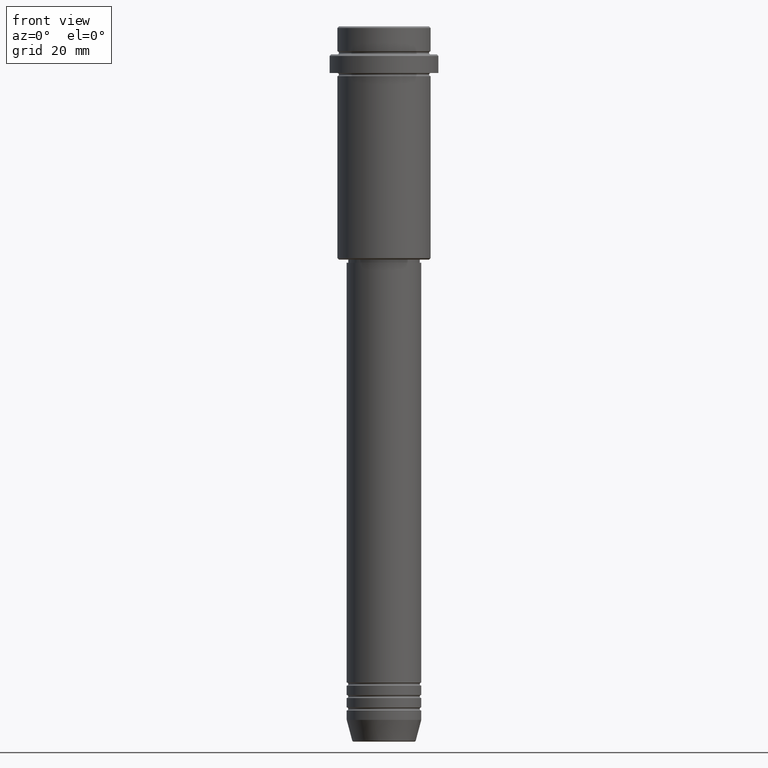
[diagram: clean part render]
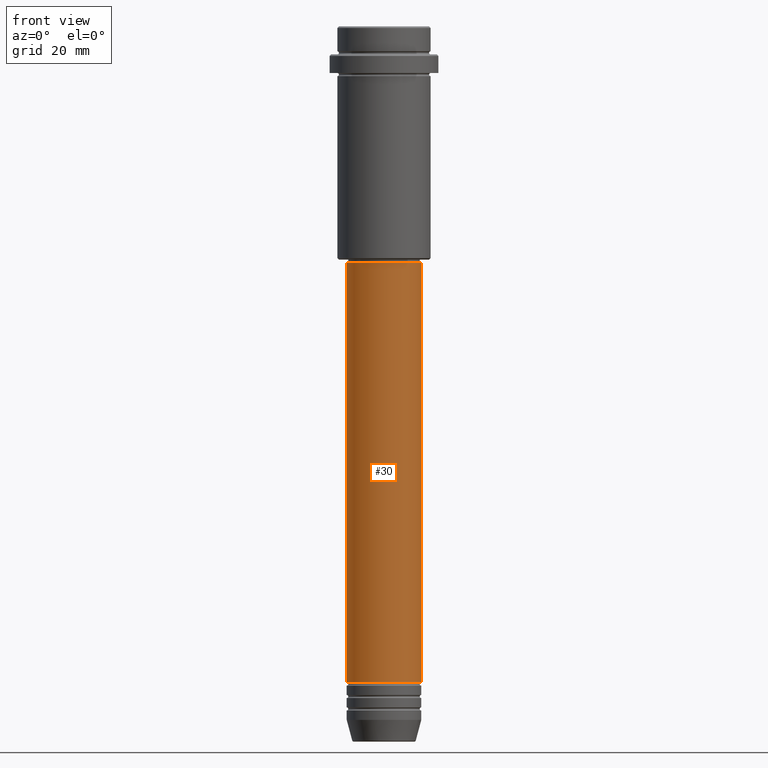
[diagram: same view with one face highlighted and labeled with its STEP entity id]
A machine part, front view. The second image highlights one B-rep face of the part: STEP entity #30.
In plain terms, the highlighted cylindrical surface (partial cylindrical patch) has radius 12 mm, axis along (-0, -0, 1).
Its self-contained STEP definition (entity closure, byte-faithful):
#4 = DIRECTION ( 'NONE',  ( 1.000000000000000000, 0.000000000000000000, 0.000000000000000000 ) ) ;
#30 = ADVANCED_FACE ( 'NONE', ( #510 ), #832, .T. ) ;
#74 = ORIENTED_EDGE ( 'NONE', *, *, #246, .T. ) ;
#109 = EDGE_CURVE ( 'NONE', #1111, #610, #493, .T. ) ;
#155 = VECTOR ( 'NONE', #255, 1000.000000000000000 ) ;
#209 = DIRECTION ( 'NONE',  ( -0.000000000000000000, -0.000000000000000000, 1.000000000000000000 ) ) ;
#238 = EDGE_CURVE ( 'NONE', #587, #1111, #975, .T. ) ;
#246 = EDGE_CURVE ( 'NONE', #587, #1126, #579, .T. ) ;
#255 = DIRECTION ( 'NONE',  ( -0.000000000000000000, -0.000000000000000000, 1.000000000000000000 ) ) ;
#260 = CARTESIAN_POINT ( 'NONE',  ( -12.00000000000000000, 1.469576158976823947E-15, 0.000000000000000000 ) ) ;
#321 = CARTESIAN_POINT ( 'NONE',  ( 12.00000000000000000, 0.000000000000000000, 0.000000000000000000 ) ) ;
#333 = CARTESIAN_POINT ( 'NONE',  ( 12.00000000000000000, 0.000000000000000000, -210.9999999999998579 ) ) ;
#360 = AXIS2_PLACEMENT_3D ( 'NONE', #570, #453, #4 ) ;
#404 = VECTOR ( 'NONE', #209, 1000.000000000000000 ) ;
#449 = AXIS2_PLACEMENT_3D ( 'NONE', #1397, #749, #637 ) ;
#453 = DIRECTION ( 'NONE',  ( -0.000000000000000000, -0.000000000000000000, 1.000000000000000000 ) ) ;
#493 = CIRCLE ( 'NONE', #449, 11.99999999999999822 ) ;
#510 = FACE_OUTER_BOUND ( 'NONE', #1414, .T. ) ;
#567 = ORIENTED_EDGE ( 'NONE', *, *, #1042, .T. ) ;
#570 = CARTESIAN_POINT ( 'NONE',  ( 0.000000000000000000, 0.000000000000000000, -210.9999999999998579 ) ) ;
#579 = CIRCLE ( 'NONE', #360, 12.00000000000000000 ) ;
#587 = VERTEX_POINT ( 'NONE', #1045 ) ;
#610 = VERTEX_POINT ( 'NONE', #739 ) ;
#637 = DIRECTION ( 'NONE',  ( 1.000000000000000000, 0.000000000000000000, 0.000000000000000000 ) ) ;
#669 = AXIS2_PLACEMENT_3D ( 'NONE', #700, #913, #1269 ) ;
#672 = ORIENTED_EDGE ( 'NONE', *, *, #109, .F. ) ;
#700 = CARTESIAN_POINT ( 'NONE',  ( 0.000000000000000000, 0.000000000000000000, 0.000000000000000000 ) ) ;
#739 = CARTESIAN_POINT ( 'NONE',  ( 11.99999999999999822, 0.000000000000000000, -75.99999999999998579 ) ) ;
#749 = DIRECTION ( 'NONE',  ( -0.000000000000000000, -0.000000000000000000, 1.000000000000000000 ) ) ;
#832 = CYLINDRICAL_SURFACE ( 'NONE', #669, 12.00000000000000000 ) ;
#874 = CARTESIAN_POINT ( 'NONE',  ( -11.99999999999999822, 1.469576158976823750E-15, -75.99999999999998579 ) ) ;
#913 = DIRECTION ( 'NONE',  ( -0.000000000000000000, -0.000000000000000000, 1.000000000000000000 ) ) ;
#975 = LINE ( 'NONE', #260, #155 ) ;
#1042 = EDGE_CURVE ( 'NONE', #1126, #610, #1387, .T. ) ;
#1045 = CARTESIAN_POINT ( 'NONE',  ( -12.00000000000000000, 1.469576158976823947E-15, -210.9999999999998579 ) ) ;
#1111 = VERTEX_POINT ( 'NONE', #874 ) ;
#1126 = VERTEX_POINT ( 'NONE', #333 ) ;
#1253 = ORIENTED_EDGE ( 'NONE', *, *, #238, .F. ) ;
#1269 = DIRECTION ( 'NONE',  ( 1.000000000000000000, 0.000000000000000000, 0.000000000000000000 ) ) ;
#1387 = LINE ( 'NONE', #321, #404 ) ;
#1397 = CARTESIAN_POINT ( 'NONE',  ( 0.000000000000000000, 0.000000000000000000, -75.99999999999998579 ) ) ;
#1414 = EDGE_LOOP ( 'NONE', ( #1253, #74, #567, #672 ) ) ;